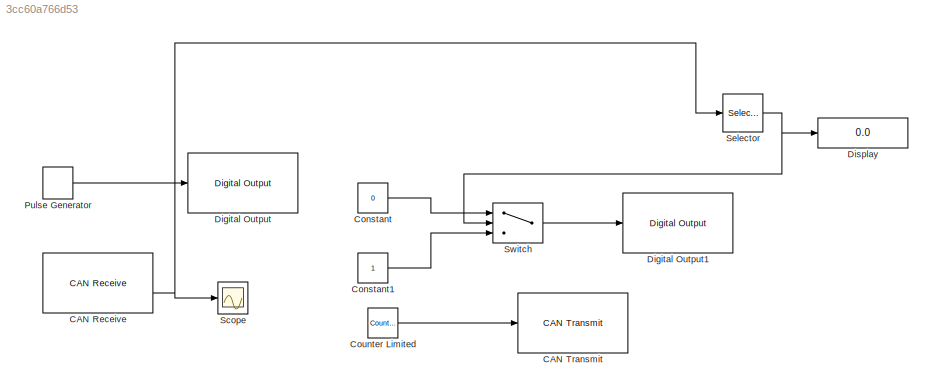
MODEL slx_3cc60a766d53
KIND model
CONFIG AbsTol = auto
CONFIG EnableMultiTasking = on
CONFIG FixedStep = auto
CONFIG MaxStep = auto
CONFIG MinStep = auto
CONFIG RelTol = 1e-3
CONFIG SampleTimeConstraint = Unconstrained
CONFIG SolverName = FixedStepAuto
CONFIG StartTime = 0.0
CONFIG StopTime = Inf
BLOCK [Reference] CAN Receive  REF=c280xlib/CAN Receive
  LibrarySourceBlock = c2837xDlib/CAN Receive
  SourceBlock = c280xlib/CAN Receive
  SourceType = C28x CAN Receive
BLOCK [Reference] CAN Transmit  REF=c280xlib/CAN Transmit
  LibrarySourceBlock = c2837xDlib/CAN Transmit
  SourceBlock = c280xlib/CAN Transmit
  SourceType = C28x CAN Transmit
BLOCK [Constant] Constant
  Value = 0
BLOCK [Constant] Constant1
BLOCK [Reference] Counter Limited  REF=simulink/Sources/Counter
Limited
  SourceBlock = simulink/Sources/Counter\nLimited
  SourceType = Counter Limited
BLOCK [Reference] Digital Output  REF=c2837xDlib/Digital Output
  SourceBlock = c2837xDlib/Digital Output
  SourceType = F2837x GPIO Digital Output
  UserDataPersistent = on
BLOCK [Reference] Digital Output1  REF=c2837xDlib/Digital Output
  SourceBlock = c2837xDlib/Digital Output
  SourceType = F2837x GPIO Digital Output
  UserDataPersistent = on
BLOCK [Display] Display
  Decimation = 1
BLOCK [DiscretePulseGenerator] Pulse Generator
  Period = 1
  PulseType = Time based
  PulseWidth = 50
BLOCK [Scope] Scope
  Floating = off
  NumInputPorts = 1
  ScopeSpecificationString = Simulink.scopes.TimeScopeBlockCfg('CurrentConfiguration', extmgr.ConfigurationSet(extmgr.Configuration('Core','General UI',true),extmgr.Configuration('Core','Source UI',true),extmgr.Configuration('Sources','WiredSimulink',true),extmgr.Configuration('Visuals','Time Domain',true,'SerializedDisplays',{struct('MinYLimReal','-31.25','MaxYLimReal','281.25','YLabelReal','','MinYLimMag','0.00000','MaxYLim...<+1542ch>
BLOCK [Selector] Selector
  IndexOptions = Starting index (dialog)
  Indices = 1
  InputPortWidth = 8
  OutputSizes = 1
BLOCK [Switch] Switch
  Criteria = u2 > Threshold
  InputSameDT = off
  SaturateOnIntegerOverflow = off
  Threshold = 8
NET CAN Receive:2 -> Scope:1, Selector:1
LINE Constant1:1 -> Switch:3
LINE Constant:1 -> Switch:1
LINE Counter Limited:1 -> CAN Transmit:1
LINE Pulse Generator:1 -> Digital Output:1
NET Selector:1 -> Display:1, Switch:2
LINE Switch:1 -> Digital Output1:1
note: NET lines group one-source signal fan-out (src -> all destinations, sorted); 1:1 wires keep LINE
